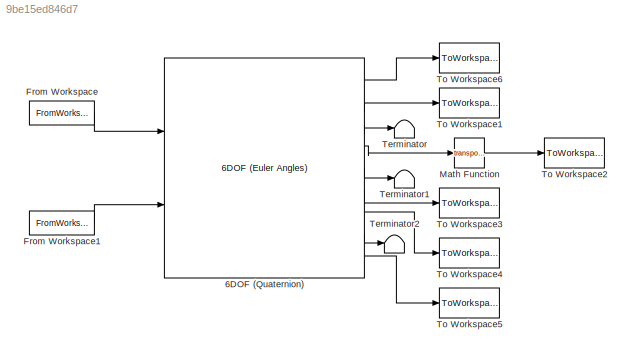
MODEL slx_9be15ed846d7
KIND model
CONFIG AbsTol = auto
CONFIG EnableMultiTasking = off
CONFIG FixedStep = sim_step
CONFIG MaxStep = auto
CONFIG MinStep = auto
CONFIG RelTol = 1e-3
CONFIG SampleTimeConstraint = Unconstrained
CONFIG Solver = FixedStepAuto
CONFIG SolverName = FixedStepAuto
CONFIG StartTime = 0.0
CONFIG StopTime = sim_duration
BLOCK [Reference] 6DOF (Quaternion)  REF=shared6dof/6DOF (Euler Angles)
  Ports = [2, 9]
  SourceBlock = shared6dof/6DOF (Euler Angles)
  SourceProductName = Attempt to write the readonly database <userpath>/.matlab/R2017a/slblocks_master.db. (attempt to write a readonly database)
  SourceType = 6DOF EoM (Body Axis)
BLOCK [FromWorkspace] From Workspace
  SampleTime = 0
  VariableName = force
  ZeroCross = on
BLOCK [FromWorkspace] From Workspace1
  SampleTime = 0
  VariableName = torque
  ZeroCross = on
BLOCK [Math] Math Function
  Operator = transpose
  Ports = [1, 1]
BLOCK [Terminator] Terminator
BLOCK [Terminator] Terminator1
BLOCK [Terminator] Terminator2
BLOCK [ToWorkspace] To Workspace1
  FixptAsFi = on
  MaxDataPoints = inf
  Ports = [1]
  SampleTime = -1
  Save2DSignal = 3-D array (concatenate along third dimension)
  SaveFormat = Timeseries
  VariableName = pos
BLOCK [ToWorkspace] To Workspace2
  FixptAsFi = on
  MaxDataPoints = inf
  Ports = [1]
  SampleTime = -1
  Save2DSignal = 3-D array (concatenate along third dimension)
  SaveFormat = Timeseries
  VariableName = dcm
BLOCK [ToWorkspace] To Workspace3
  FixptAsFi = on
  MaxDataPoints = inf
  Ports = [1]
  SampleTime = -1
  Save2DSignal = 3-D array (concatenate along third dimension)
  SaveFormat = Timeseries
  VariableName = omega
BLOCK [ToWorkspace] To Workspace4
  FixptAsFi = on
  MaxDataPoints = inf
  Ports = [1]
  SampleTime = -1
  Save2DSignal = 3-D array (concatenate along third dimension)
  SaveFormat = Timeseries
  VariableName = domega
BLOCK [ToWorkspace] To Workspace5
  FixptAsFi = on
  MaxDataPoints = inf
  Ports = [1]
  SampleTime = -1
  Save2DSignal = 3-D array (concatenate along third dimension)
  SaveFormat = Timeseries
  VariableName = acc
BLOCK [ToWorkspace] To Workspace6
  FixptAsFi = on
  MaxDataPoints = inf
  Ports = [1]
  SampleTime = -1
  Save2DSignal = 3-D array (concatenate along third dimension)
  SaveFormat = Timeseries
  VariableName = vel
LINE 6DOF (Quaternion):1 -> To Workspace6:1
LINE 6DOF (Quaternion):2 -> To Workspace1:1
LINE 6DOF (Quaternion):3 -> Terminator:1
LINE 6DOF (Quaternion):4 -> Math Function:1
LINE 6DOF (Quaternion):5 -> Terminator1:1
LINE 6DOF (Quaternion):6 -> To Workspace3:1
LINE 6DOF (Quaternion):7 -> To Workspace4:1
LINE 6DOF (Quaternion):8 -> Terminator2:1
LINE 6DOF (Quaternion):9 -> To Workspace5:1
LINE From Workspace1:1 -> 6DOF (Quaternion):2
LINE From Workspace:1 -> 6DOF (Quaternion):1
LINE Math Function:1 -> To Workspace2:1
